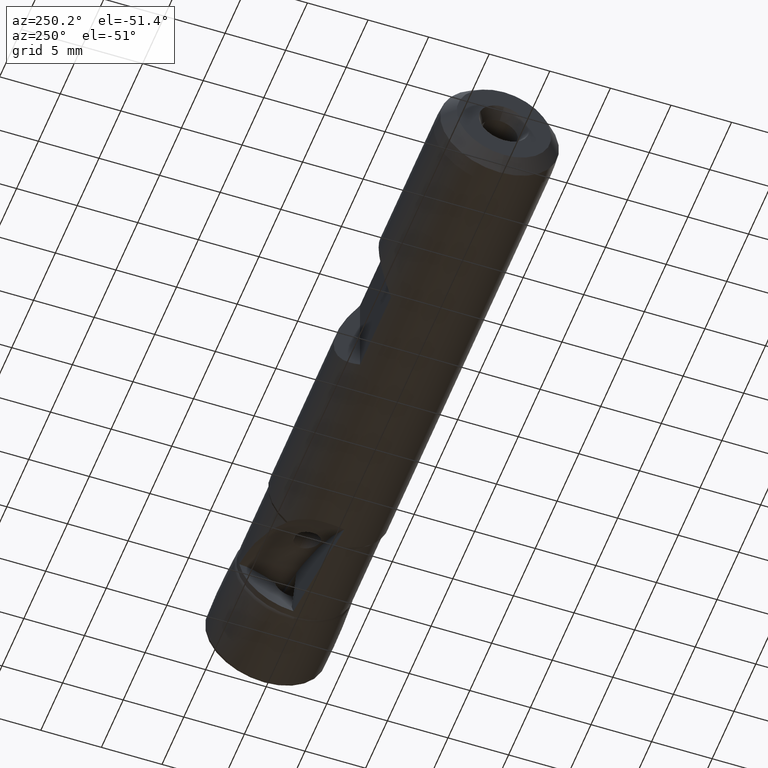
[diagram: clean part render]
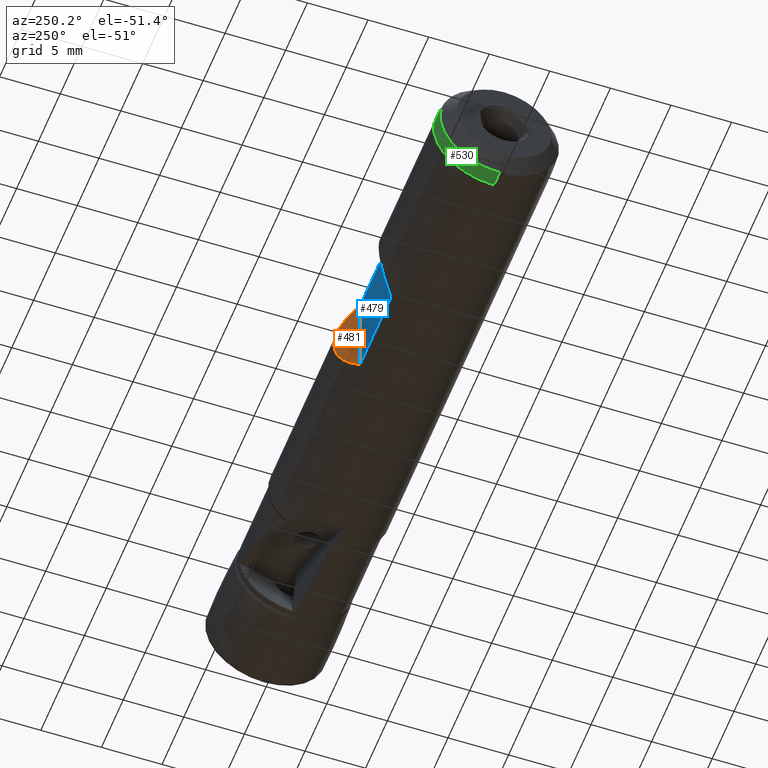
[diagram: same view with three faces highlighted in distinct colors, each labeled with its STEP entity id]
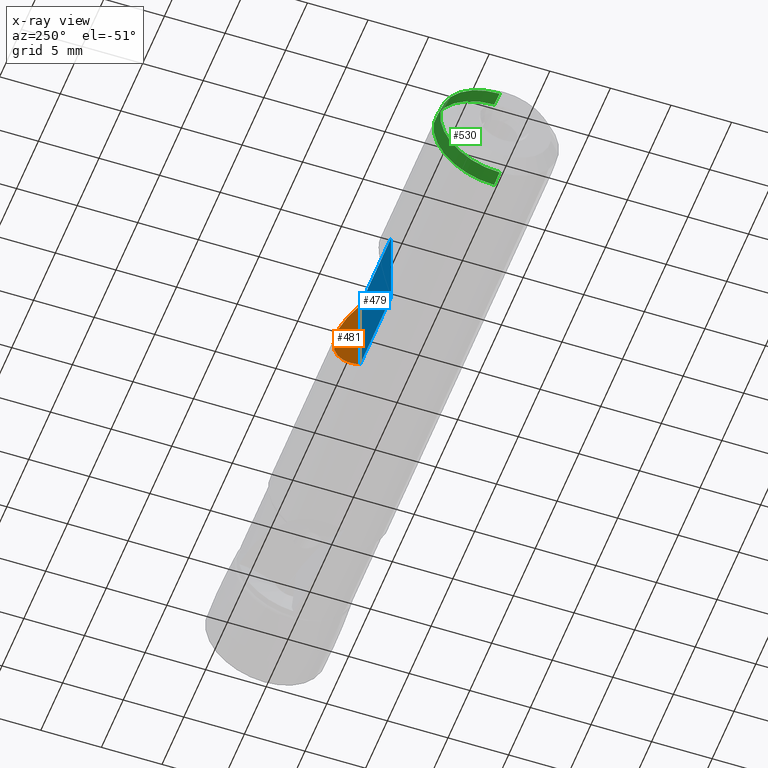
[diagram: x-ray of the same camera — body ghosted, the three highlighted faces saturated]
A machine part, auxiliary view with three faces highlighted in distinct colors.
The next image is the same camera in x-ray (body ghosted, the three faces saturated) — at least one of them is partly hidden behind the body in this view.
Their STEP definitions:

[orange] entity #481 — the highlighted planar face has unit normal (0.7071, -0.7071, 0).
#26 = EDGE_LOOP ( 'NONE', ( #757, #751 ) ) ;
#151 = VERTEX_POINT ( 'NONE', #977 ) ;
#156 = VERTEX_POINT ( 'NONE', #982 ) ;
#300 = AXIS2_PLACEMENT_3D ( 'NONE', #1863, #1869, #1870 ) ;
#306 = VECTOR ( 'NONE', #1959, 1000.000000000000000 ) ;
#345 = EDGE_CURVE ( 'NONE', #151, #156, #1189, .T. ) ;
#481 = ADVANCED_FACE ( 'NONE', ( #1867 ), #1861, .F. ) ;
#501 = EDGE_CURVE ( 'NONE', #151, #156, #1957, .T. ) ;
#751 = ORIENTED_EDGE ( 'NONE', *, *, #345, .T. ) ;
#757 = ORIENTED_EDGE ( 'NONE', *, *, #501, .F. ) ;
#977 = CARTESIAN_POINT ( 'NONE',  ( -30.95000000000000600, 3.400000000000003000, 3.666060555964668800 ) ) ;
#982 = CARTESIAN_POINT ( 'NONE',  ( -30.95000000000000600, 3.400000000000003000, -3.666060555964661700 ) ) ;
#1189 =( BOUNDED_CURVE ( )  B_SPLINE_CURVE ( 3, ( #1366, #1371, #1372, #1373 ),
 .UNSPECIFIED., .F., .T. ) 
 B_SPLINE_CURVE_WITH_KNOTS ( ( 4, 4 ),
 ( 5.460151615044611400, 7.106218999314560100 ),
 .UNSPECIFIED. ) 
 CURVE ( )  GEOMETRIC_REPRESENTATION_ITEM ( )  RATIONAL_B_SPLINE_CURVE ( ( 1.000000000000000000, 0.7866666666666675100, 0.7866666666666675100, 1.000000000000000000 ) ) 
 REPRESENTATION_ITEM ( '' )  );
#1366 = CARTESIAN_POINT ( 'NONE',  ( -30.95000000000000600, 3.400000000000003000, 3.666060555964668800 ) ) ;
#1371 = CARTESIAN_POINT ( 'NONE',  ( -28.67203389830511600, 5.677966101694906300, 1.553415489815537700 ) ) ;
#1372 = CARTESIAN_POINT ( 'NONE',  ( -28.67203389830511600, 5.677966101694906300, -1.553415489815531500 ) ) ;
#1373 = CARTESIAN_POINT ( 'NONE',  ( -30.95000000000000600, 3.400000000000003000, -3.666060555964661700 ) ) ;
#1861 = PLANE ( 'NONE',  #300 ) ;
#1863 = CARTESIAN_POINT ( 'NONE',  ( -30.95000000000000600, 3.400000000000003000, 23.14999999999999900 ) ) ;
#1867 = FACE_OUTER_BOUND ( 'NONE', #26, .T. ) ;
#1869 = DIRECTION ( 'NONE',  ( 0.7071067811865489100, -0.7071067811865461300, 0.0000000000000000000 ) ) ;
#1870 = DIRECTION ( 'NONE',  ( 0.7071067811865461300, 0.7071067811865489100, 0.0000000000000000000 ) ) ;
#1957 = LINE ( 'NONE', #1958, #306 ) ;
#1958 = CARTESIAN_POINT ( 'NONE',  ( -30.95000000000000600, 3.400000000000003000, 23.14999999999999900 ) ) ;
#1959 = DIRECTION ( 'NONE',  ( -0.0000000000000000000, -0.0000000000000000000, -1.000000000000000000 ) ) ;

[blue] entity #479 — the highlighted planar face has unit normal (-0, -1, 0).
#57 = EDGE_LOOP ( 'NONE', ( #742, #737, #749, #746 ) ) ;
#151 = VERTEX_POINT ( 'NONE', #977 ) ;
#155 = VERTEX_POINT ( 'NONE', #981 ) ;
#156 = VERTEX_POINT ( 'NONE', #982 ) ;
#158 = VERTEX_POINT ( 'NONE', #984 ) ;
#302 = AXIS2_PLACEMENT_3D ( 'NONE', #1854, #1859, #1860 ) ;
#306 = VECTOR ( 'NONE', #1959, 1000.000000000000000 ) ;
#315 = VECTOR ( 'NONE', #1956, 1000.000000000000000 ) ;
#346 = EDGE_CURVE ( 'NONE', #155, #151, #1370, .T. ) ;
#348 = EDGE_CURVE ( 'NONE', #156, #158, #1376, .T. ) ;
#479 = ADVANCED_FACE ( 'NONE', ( #1856 ), #1857, .F. ) ;
#500 = EDGE_CURVE ( 'NONE', #155, #158, #1948, .T. ) ;
#501 = EDGE_CURVE ( 'NONE', #151, #156, #1957, .T. ) ;
#737 = ORIENTED_EDGE ( 'NONE', *, *, #348, .T. ) ;
#742 = ORIENTED_EDGE ( 'NONE', *, *, #501, .T. ) ;
#746 = ORIENTED_EDGE ( 'NONE', *, *, #346, .T. ) ;
#749 = ORIENTED_EDGE ( 'NONE', *, *, #500, .F. ) ;
#977 = CARTESIAN_POINT ( 'NONE',  ( -30.95000000000000600, 3.400000000000003000, 3.666060555964668800 ) ) ;
#981 = CARTESIAN_POINT ( 'NONE',  ( -38.04999999999999700, 3.399999999999999000, 3.666060555964667100 ) ) ;
#982 = CARTESIAN_POINT ( 'NONE',  ( -30.95000000000000600, 3.400000000000003000, -3.666060555964661700 ) ) ;
#984 = CARTESIAN_POINT ( 'NONE',  ( -38.04999999999999700, 3.400000000000003900, -3.666060555964665300 ) ) ;
#1241 = VECTOR ( 'NONE', #1381, 1000.000000000000000 ) ;
#1307 = VECTOR ( 'NONE', #1375, 1000.000000000000000 ) ;
#1370 = LINE ( 'NONE', #1374, #1307 ) ;
#1374 = CARTESIAN_POINT ( 'NONE',  ( 4.153563252338835800E-016, 3.399999999999999000, 3.666060555964667100 ) ) ;
#1375 = DIRECTION ( 'NONE',  ( 1.000000000000000000, -0.0000000000000000000, -0.0000000000000000000 ) ) ;
#1376 = LINE ( 'NONE', #1380, #1241 ) ;
#1380 = CARTESIAN_POINT ( 'NONE',  ( 4.153563252338835800E-016, 3.399999999999999000, -3.666060555964667100 ) ) ;
#1381 = DIRECTION ( 'NONE',  ( -1.000000000000000000, 0.0000000000000000000, 0.0000000000000000000 ) ) ;
#1854 = CARTESIAN_POINT ( 'NONE',  ( -38.04999999999999700, 3.400000000000003900, 23.14999999999999900 ) ) ;
#1856 = FACE_OUTER_BOUND ( 'NONE', #57, .T. ) ;
#1857 = PLANE ( 'NONE',  #302 ) ;
#1859 = DIRECTION ( 'NONE',  ( -1.221636250687893200E-016, -1.000000000000000000, 0.0000000000000000000 ) ) ;
#1860 = DIRECTION ( 'NONE',  ( 1.000000000000000000, -1.221636250687893200E-016, 0.0000000000000000000 ) ) ;
#1948 = LINE ( 'NONE', #1949, #315 ) ;
#1949 = CARTESIAN_POINT ( 'NONE',  ( -38.04999999999999700, 3.400000000000003900, 23.14999999999999900 ) ) ;
#1956 = DIRECTION ( 'NONE',  ( -0.0000000000000000000, -0.0000000000000000000, -1.000000000000000000 ) ) ;
#1957 = LINE ( 'NONE', #1958, #306 ) ;
#1958 = CARTESIAN_POINT ( 'NONE',  ( -30.95000000000000600, 3.400000000000003000, 23.14999999999999900 ) ) ;
#1959 = DIRECTION ( 'NONE',  ( -0.0000000000000000000, -0.0000000000000000000, -1.000000000000000000 ) ) ;

[green] entity #530 — the highlighted conical surface has half-angle 4.574 deg.
#92 = EDGE_LOOP ( 'NONE', ( #582, #587, #570, #571 ) ) ;
#153 = VERTEX_POINT ( 'NONE', #979 ) ;
#161 = VERTEX_POINT ( 'NONE', #987 ) ;
#177 = VERTEX_POINT ( 'NONE', #1003 ) ;
#178 = VERTEX_POINT ( 'NONE', #1004 ) ;
#349 = EDGE_CURVE ( 'NONE', #153, #161, #1232, .T. ) ;
#369 = EDGE_CURVE ( 'NONE', #177, #178, #1333, .T. ) ;
#371 = EDGE_CURVE ( 'NONE', #178, #161, #1457, .T. ) ;
#372 = EDGE_CURVE ( 'NONE', #177, #153, #1467, .T. ) ;
#530 = ADVANCED_FACE ( 'NONE', ( #2086 ), #604, .T. ) ;
#570 = ORIENTED_EDGE ( 'NONE', *, *, #349, .F. ) ;
#571 = ORIENTED_EDGE ( 'NONE', *, *, #372, .F. ) ;
#582 = ORIENTED_EDGE ( 'NONE', *, *, #369, .T. ) ;
#587 = ORIENTED_EDGE ( 'NONE', *, *, #371, .T. ) ;
#604 = CONICAL_SURFACE ( 'NONE', #607, 5.099999999999993400, 0.07982998571223745600 ) ;
#607 = AXIS2_PLACEMENT_3D ( 'NONE', #2085, #2087, #2084 ) ;
#979 = CARTESIAN_POINT ( 'NONE',  ( -52.24999999999996400, 0.0000000000000000000, -4.999999999999995600 ) ) ;
#987 = CARTESIAN_POINT ( 'NONE',  ( -52.24999999999996400, 6.123233995736761400E-016, 4.999999999999995600 ) ) ;
#1003 = CARTESIAN_POINT ( 'NONE',  ( -53.50000000000000000, 0.0000000000000000000, -4.899999999999993200 ) ) ;
#1004 = CARTESIAN_POINT ( 'NONE',  ( -53.50000000000000000, 6.062001655779391600E-016, 4.899999999999993200 ) ) ;
#1232 = CIRCLE ( 'NONE', #1252, 4.999999999999995600 ) ;
#1239 = AXIS2_PLACEMENT_3D ( 'NONE', #1460, #1461, #1462 ) ;
#1252 = AXIS2_PLACEMENT_3D ( 'NONE', #1385, #1386, #1387 ) ;
#1302 = VECTOR ( 'NONE', #1470, 1000.000000000000200 ) ;
#1314 = VECTOR ( 'NONE', #1466, 1000.000000000000200 ) ;
#1333 = CIRCLE ( 'NONE', #1239, 4.899999999999993200 ) ;
#1385 = CARTESIAN_POINT ( 'NONE',  ( -52.24999999999996400, 0.0000000000000000000, 0.0000000000000000000 ) ) ;
#1386 = DIRECTION ( 'NONE',  ( 1.000000000000000000, -0.0000000000000000000, -0.0000000000000000000 ) ) ;
#1387 = DIRECTION ( 'NONE',  ( 0.0000000000000000000, 0.0000000000000000000, -1.000000000000000000 ) ) ;
#1457 = LINE ( 'NONE', #1465, #1314 ) ;
#1460 = CARTESIAN_POINT ( 'NONE',  ( -53.50000000000000000, 0.0000000000000000000, 0.0000000000000000000 ) ) ;
#1461 = DIRECTION ( 'NONE',  ( 1.000000000000000000, -0.0000000000000000000, -0.0000000000000000000 ) ) ;
#1462 = DIRECTION ( 'NONE',  ( 0.0000000000000000000, 0.0000000000000000000, -1.000000000000000000 ) ) ;
#1465 = CARTESIAN_POINT ( 'NONE',  ( -51.00000000000000000, 6.245698675651493000E-016, 5.099999999999993400 ) ) ;
#1466 = DIRECTION ( 'NONE',  ( 0.9968152785361249500, 9.765973121603558300E-018, 0.07974522228289011900 ) ) ;
#1467 = LINE ( 'NONE', #1469, #1302 ) ;
#1469 = CARTESIAN_POINT ( 'NONE',  ( -51.00000000000000000, 0.0000000000000000000, -5.099999999999993400 ) ) ;
#1470 = DIRECTION ( 'NONE',  ( 0.9968152785361249500, 0.0000000000000000000, -0.07974522228289011900 ) ) ;
#2084 = DIRECTION ( 'NONE',  ( 0.0000000000000000000, 0.0000000000000000000, -1.000000000000000000 ) ) ;
#2085 = CARTESIAN_POINT ( 'NONE',  ( -51.00000000000000000, 0.0000000000000000000, 0.0000000000000000000 ) ) ;
#2086 = FACE_OUTER_BOUND ( 'NONE', #92, .T. ) ;
#2087 = DIRECTION ( 'NONE',  ( 1.000000000000000000, -0.0000000000000000000, -0.0000000000000000000 ) ) ;